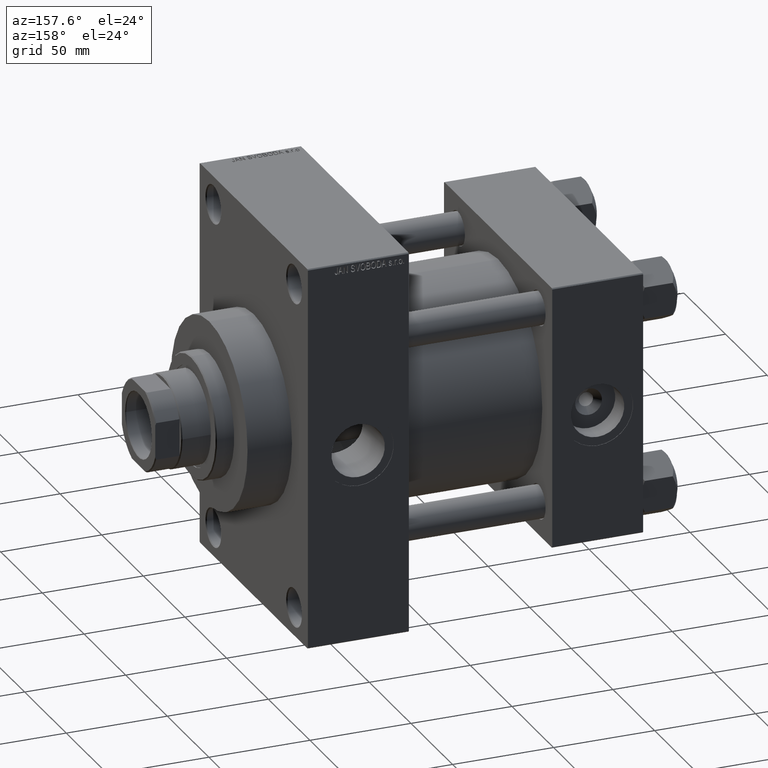
[diagram: clean part render]
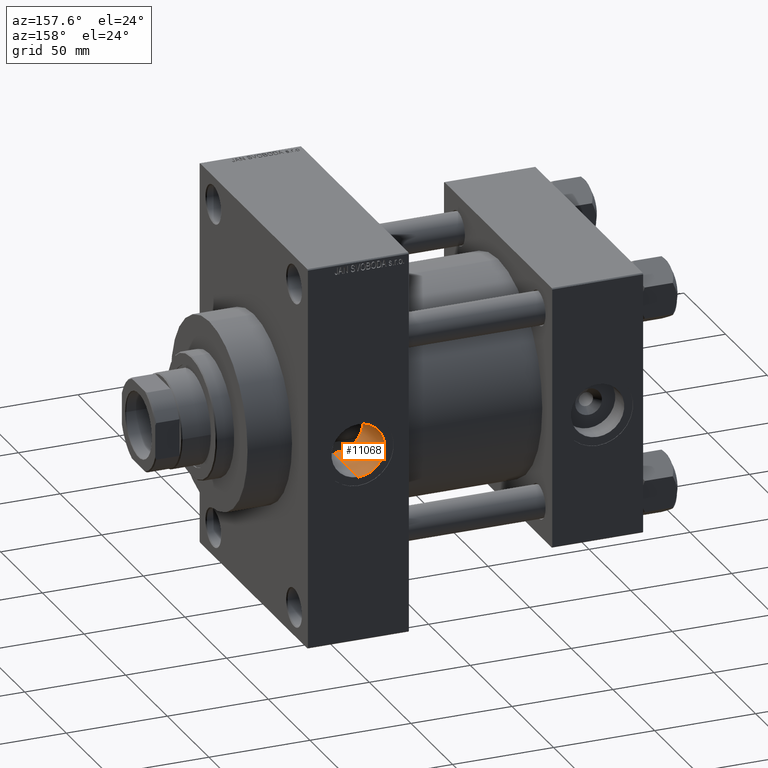
[diagram: same view with one face highlighted and labeled with its STEP entity id]
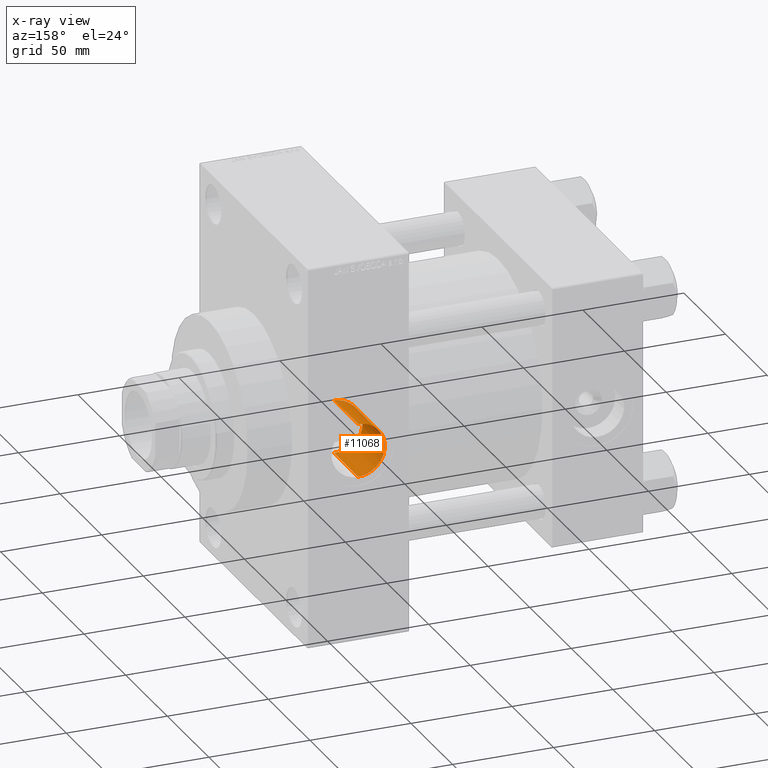
[diagram: x-ray of the same camera — body ghosted, the highlighted face saturated]
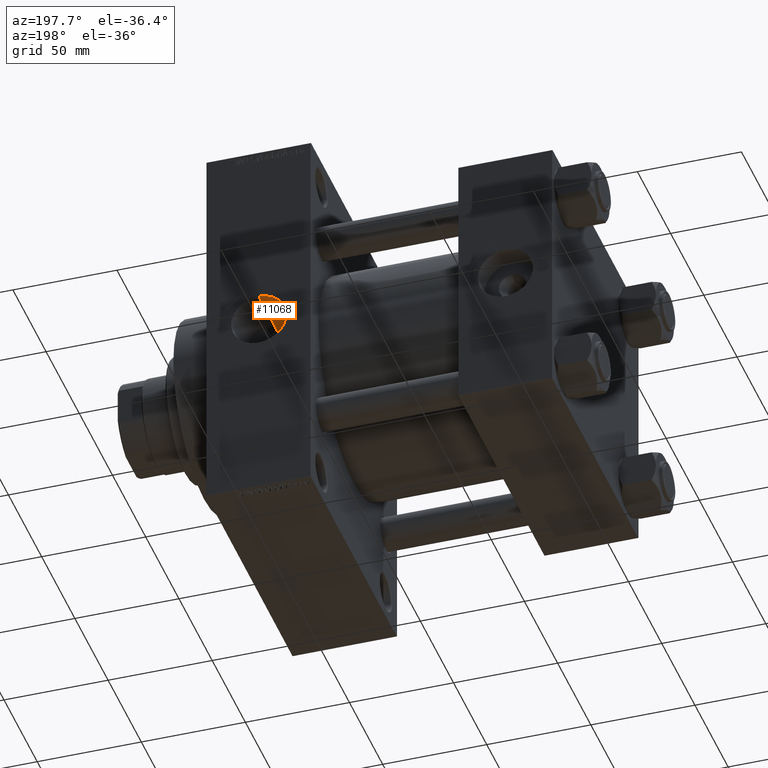
[diagram: same view with one face highlighted and labeled with its STEP entity id]
A machine part, auxiliary view. The second image highlights one B-rep face of the part: STEP entity #11068.
The next image is the same camera in x-ray: the body ghosted, the highlighted face saturated — about 0% of this face is hidden behind the body in this view.
A second angle (auxiliary view) of the same face is appended — the face is thin or edge-on in the first view.
In plain terms, the highlighted cylindrical surface (edge-blend (fillet) strip) has radius 13.22 mm, axis along (0, 1, 0).
Its self-contained STEP definition (entity closure, byte-faithful):
#766 = DIRECTION ( 'NONE',  ( -0.000000000000000000, 1.000000000000000000, -0.000000000000000000 ) ) ;
#1470 = AXIS2_PLACEMENT_3D ( 'NONE', #43953, #10920, #37607 ) ;
#1823 = CARTESIAN_POINT ( 'NONE',  ( 129.5600432235442270, 37.41746185038613248, 6.639445165644161762 ) ) ;
#2004 = CIRCLE ( 'NONE', #25087, 13.22000000000001307 ) ;
#2291 = CARTESIAN_POINT ( 'NONE',  ( 130.5153516025037845, 37.13610756588405337, 8.063843751493369183 ) ) ;
#2531 = CARTESIAN_POINT ( 'NONE',  ( 132.2669683422940636, 36.67958660859540032, -9.934237774154285106 ) ) ;
#5675 = CARTESIAN_POINT ( 'NONE',  ( 128.1225866021518129, 37.88209177723040710, -3.021902310819363446 ) ) ;
#5909 = CARTESIAN_POINT ( 'NONE',  ( 127.7802135983122298, 37.99992569027332223, -0.8720608545679496837 ) ) ;
#6140 = CARTESIAN_POINT ( 'NONE',  ( 140.5618917762526223, 35.62627681922431577, -13.22000000000001485 ) ) ;
#6384 = CARTESIAN_POINT ( 'NONE',  ( 131.0424509538692348, 36.98705725723321791, -8.737705372280588634 ) ) ;
#7904 = LINE ( 'NONE', #15619, #33076 ) ;
#8865 = CARTESIAN_POINT ( 'NONE',  ( 140.1316431442652402, 35.63420615302777605, 13.19869169358727845 ) ) ;
#9284 = CARTESIAN_POINT ( 'NONE',  ( 128.6298991205649713, 37.71241900904690425, -4.683372198120688168 ) ) ;
#9352 = CARTESIAN_POINT ( 'NONE',  ( 141.0000000000000000, 35.62627681922430867, 13.22000000000001307 ) ) ;
#9513 = CARTESIAN_POINT ( 'NONE',  ( 127.7798937978953404, 38.00003694715224611, 0.4311643134062884686 ) ) ;
#9752 = CARTESIAN_POINT ( 'NONE',  ( 132.9291369705610748, 36.52236932285444482, 10.50548543731929918 ) ) ;
#9832 = ORIENTED_EDGE ( 'NONE', *, *, #14452, .F. ) ;
#9993 = CARTESIAN_POINT ( 'NONE',  ( 138.8242508676693774, 35.69014078260455847, -13.04691774255384296 ) ) ;
#10513 = VERTEX_POINT ( 'NONE', #14607 ) ;
#10920 = DIRECTION ( 'NONE',  ( -0.000000000000000000, 1.000000000000000000, -0.000000000000000000 ) ) ;
#10971 = VERTEX_POINT ( 'NONE', #17215 ) ;
#11068 = ADVANCED_FACE ( 'NONE', ( #29238 ), #22896, .F. ) ;
#11273 = EDGE_CURVE ( 'NONE', #10513, #10971, #7904, .T. ) ;
#12242 = CARTESIAN_POINT ( 'NONE',  ( 138.8247374280340409, 35.69008438407699657, 13.04707582055566206 ) ) ;
#12899 = CARTESIAN_POINT ( 'NONE',  ( 129.7758276448284960, 37.35184923212958807, -6.998123338183319220 ) ) ;
#13140 = CARTESIAN_POINT ( 'NONE',  ( 132.9339771790871225, 36.52652400640451447, -10.48304335297913958 ) ) ;
#13374 = CARTESIAN_POINT ( 'NONE',  ( 132.2682832125439347, 36.67596992325633209, 9.963317499844542624 ) ) ;
#13570 = EDGE_LOOP ( 'NONE', ( #9832, #25633, #25462, #16285 ) ) ;
#13616 = CARTESIAN_POINT ( 'NONE',  ( 135.1099061451110970, 36.10120011245600580, -11.86708476633106102 ) ) ;
#14452 = EDGE_CURVE ( 'NONE', #17688, #10513, #40630, .T. ) ;
#14607 = CARTESIAN_POINT ( 'NONE',  ( 141.0000000000000000, 35.62627681922430867, 13.22000000000001307 ) ) ;
#15619 = CARTESIAN_POINT ( 'NONE',  ( 141.0000000000000000, -37.39180658914465027, 13.22000000000001307 ) ) ;
#16109 = CARTESIAN_POINT ( 'NONE',  ( 135.1333276632799425, 36.10411497564800953, 11.85493505779146339 ) ) ;
#16285 = ORIENTED_EDGE ( 'NONE', *, *, #11273, .F. ) ;
#16531 = CARTESIAN_POINT ( 'NONE',  ( 131.9493596604880565, 36.75677074963384428, -9.645583392906809550 ) ) ;
#16770 = CARTESIAN_POINT ( 'NONE',  ( 134.3535355515563197, 36.23420660765165735, -11.46003589006834567 ) ) ;
#17013 = CARTESIAN_POINT ( 'NONE',  ( 129.5518800472677015, 37.41996292011766911, -6.625297506643177847 ) ) ;
#17215 = CARTESIAN_POINT ( 'NONE',  ( 141.0000000000000000, 64.79999999999999716, 13.22000000000001307 ) ) ;
#17442 = CARTESIAN_POINT ( 'NONE',  ( 141.0000000000000000, 64.79999999999999716, 0.000000000000000000 ) ) ;
#17688 = VERTEX_POINT ( 'NONE', #23750 ) ;
#18359 = CARTESIAN_POINT ( 'NONE',  ( 141.0000000000000000, 64.79999999999999716, -13.22000000000001307 ) ) ;
#20152 = CARTESIAN_POINT ( 'NONE',  ( 136.3108204712583813, 35.93136465036942440, -12.36802821653081352 ) ) ;
#20259 = VECTOR ( 'NONE', #766, 1000.000000000000000 ) ;
#20382 = CARTESIAN_POINT ( 'NONE',  ( 128.4618205611784276, 37.76688427079497501, 4.279994390426308470 ) ) ;
#20621 = CARTESIAN_POINT ( 'NONE',  ( 128.9604593276803826, 37.60528807690431563, -5.477484031294903133 ) ) ;
#20856 = CARTESIAN_POINT ( 'NONE',  ( 136.7237809529442814, 35.87961742673765286, -12.51683505570305321 ) ) ;
#21092 = CARTESIAN_POINT ( 'NONE',  ( 127.8878344325844978, 37.96259780973563380, 1.741426162006191936 ) ) ;
#22896 = CYLINDRICAL_SURFACE ( 'NONE', #1470, 13.22000000000001307 ) ;
#23750 = CARTESIAN_POINT ( 'NONE',  ( 141.0000000000000000, 35.62627681922430867, -13.22000000000001307 ) ) ;
#24061 = CARTESIAN_POINT ( 'NONE',  ( 140.5661005634405001, 35.62627681922431577, 13.22000000000001485 ) ) ;
#24225 = CARTESIAN_POINT ( 'NONE',  ( 128.9632110744066154, 37.60439985706686628, 5.483893349277973783 ) ) ;
#24463 = CARTESIAN_POINT ( 'NONE',  ( 128.2093389255354623, 37.85243454951232422, 3.452886132604696012 ) ) ;
#24704 = CARTESIAN_POINT ( 'NONE',  ( 128.4836777600242499, 37.76076882823022629, -4.277630650147827396 ) ) ;
#25087 = AXIS2_PLACEMENT_3D ( 'NONE', #17442, #29225, #43235 ) ;
#25462 = ORIENTED_EDGE ( 'NONE', *, *, #39573, .T. ) ;
#25633 = ORIENTED_EDGE ( 'NONE', *, *, #28846, .T. ) ;
#27592 = CARTESIAN_POINT ( 'NONE',  ( 127.8652366135895591, 37.97008843306382886, -1.735358281127687308 ) ) ;
#28056 = CARTESIAN_POINT ( 'NONE',  ( 137.5549420753963545, 35.79007294564414821, -12.77062195220749707 ) ) ;
#28846 = EDGE_CURVE ( 'NONE', #17688, #37645, #34036, .T. ) ;
#29225 = DIRECTION ( 'NONE',  ( 0.000000000000000000, 1.000000000000000000, 0.000000000000000000 ) ) ;
#29238 = FACE_OUTER_BOUND ( 'NONE', #13570, .T. ) ;
#31538 = CARTESIAN_POINT ( 'NONE',  ( 137.5441526903067313, 35.78336911150315558, 12.78998585884211536 ) ) ;
#31707 = CARTESIAN_POINT ( 'NONE',  ( 131.0617318961428452, 36.98556212943010024, 8.728359248076060339 ) ) ;
#31944 = CARTESIAN_POINT ( 'NONE',  ( 133.9979781520132747, 36.30617258385186119, 11.22158650186059958 ) ) ;
#33076 = VECTOR ( 'NONE', #33706, 1000.000000000000000 ) ;
#33706 = DIRECTION ( 'NONE',  ( -0.000000000000000000, 1.000000000000000000, -0.000000000000000000 ) ) ;
#34036 = LINE ( 'NONE', #44873, #20259 ) ;
#34434 = CARTESIAN_POINT ( 'NONE',  ( 134.3672832704606321, 36.23647616811942385, 11.44396776981560038 ) ) ;
#34856 = CARTESIAN_POINT ( 'NONE',  ( 128.2302547814276465, 37.84552461033380411, -3.448195679880181608 ) ) ;
#35330 = CARTESIAN_POINT ( 'NONE',  ( 130.2594725218952476, 37.20938644396613171, 7.719670651286112850 ) ) ;
#35571 = CARTESIAN_POINT ( 'NONE',  ( 130.4985828106936765, 37.13891957217436612, -8.077012955061345423 ) ) ;
#37607 = DIRECTION ( 'NONE',  ( 0.000000000000000000, 0.000000000000000000, 1.000000000000000000 ) ) ;
#37645 = VERTEX_POINT ( 'NONE', #18359 ) ;
#38293 = CARTESIAN_POINT ( 'NONE',  ( 136.7198135699971431, 35.87380720009301882, 12.53763401893739449 ) ) ;
#38940 = CARTESIAN_POINT ( 'NONE',  ( 129.7818184600719178, 37.35006166114415294, 7.007470899651930374 ) ) ;
#39174 = CARTESIAN_POINT ( 'NONE',  ( 129.1511736182911250, 37.54448730375481347, 5.878788695887182669 ) ) ;
#39414 = CARTESIAN_POINT ( 'NONE',  ( 137.9750380191941872, 35.75196022291108022, -12.87655046518604962 ) ) ;
#39573 = EDGE_CURVE ( 'NONE', #37645, #10971, #2004, .T. ) ;
#40630 = B_SPLINE_CURVE_WITH_KNOTS ( 'NONE', 3,
 ( #45937, #6140, #42316, #43034, #9993, #39414, #28056, #20856, #20152, #13616, #16770, #46175, #13140, #2531, #16531, #6384, #35571, #12899, #17013, #42791, #20621, #9284, #24704, #34856, #5675, #27592, #5909, #9513, #46644, #21092, #42554, #24463, #20382, #24225, #39174, #1823, #38940, #35330, #2291, #31707, #46413, #13374, #9752, #31944, #34434, #16109, #41903, #38293, #31538, #12242, #45275, #8865, #24061, #9352 ),
 .UNSPECIFIED., .F., .F.,
 ( 4, 2, 2, 2, 2, 2, 2, 2, 2, 2, 2, 2, 2, 2, 2, 2, 2, 2, 2, 2, 2, 2, 2, 2, 2, 2, 4 ),
 ( 0.003783319139312589507, 0.005085596447969817878, 0.006387873756627046248, 0.007690151065284273751, 0.008992428373941502989, 0.01159698299125603085, 0.01289926029991329479, 0.01420153760857055872, 0.01680609222588509005, 0.01810836953454232623, 0.01941064684319956588, 0.02071292415185680899, 0.02201520146051404864, 0.02461975607782852793, 0.02592203338648577104, 0.02722431069514301069, 0.02982886531245751427, 0.03113114262111477473, 0.03243341992977204213, 0.03373569723842931301, 0.03503797454708657000, 0.03764252916440115337, 0.03894480647305848670, 0.04024708378171581308, 0.04285163839903047278, 0.04415391570768779222, 0.04545619301634512555 ),
 .UNSPECIFIED. ) ;
#41903 = CARTESIAN_POINT ( 'NONE',  ( 135.5252886674693684, 36.04231784948083117, 12.04084305572332170 ) ) ;
#42316 = CARTESIAN_POINT ( 'NONE',  ( 140.1208523280665474, 35.63448643298990959, -13.19793566324658052 ) ) ;
#42554 = CARTESIAN_POINT ( 'NONE',  ( 127.9529060782485033, 37.94010816344398052, 2.174970928227265787 ) ) ;
#42791 = CARTESIAN_POINT ( 'NONE',  ( 129.1447993931302278, 37.54650391074990523, -5.865853396953762733 ) ) ;
#43034 = CARTESIAN_POINT ( 'NONE',  ( 139.2533676125589750, 35.66643306262533741, -13.11135697414283463 ) ) ;
#43235 = DIRECTION ( 'NONE',  ( 0.000000000000000000, 0.000000000000000000, 1.000000000000000000 ) ) ;
#43953 = CARTESIAN_POINT ( 'NONE',  ( 141.0000000000000000, -37.39180658914465027, 0.000000000000000000 ) ) ;
#44873 = CARTESIAN_POINT ( 'NONE',  ( 141.0000000000000000, -37.39180658914465027, -13.22000000000001307 ) ) ;
#45275 = CARTESIAN_POINT ( 'NONE',  ( 139.2615892738816115, 35.66601570655551257, 13.11249153283188384 ) ) ;
#45937 = CARTESIAN_POINT ( 'NONE',  ( 141.0000000000000000, 35.62627681922430867, -13.22000000000001307 ) ) ;
#46175 = CARTESIAN_POINT ( 'NONE',  ( 133.2820576187702102, 36.45100676669127182, -10.74181751225264136 ) ) ;
#46413 = CARTESIAN_POINT ( 'NONE',  ( 131.3538817659125471, 36.90788899307042925, 9.050212507381717231 ) ) ;
#46644 = CARTESIAN_POINT ( 'NONE',  ( 127.8011429048812886, 37.99262790613190077, 0.8669615491311956079 ) ) ;